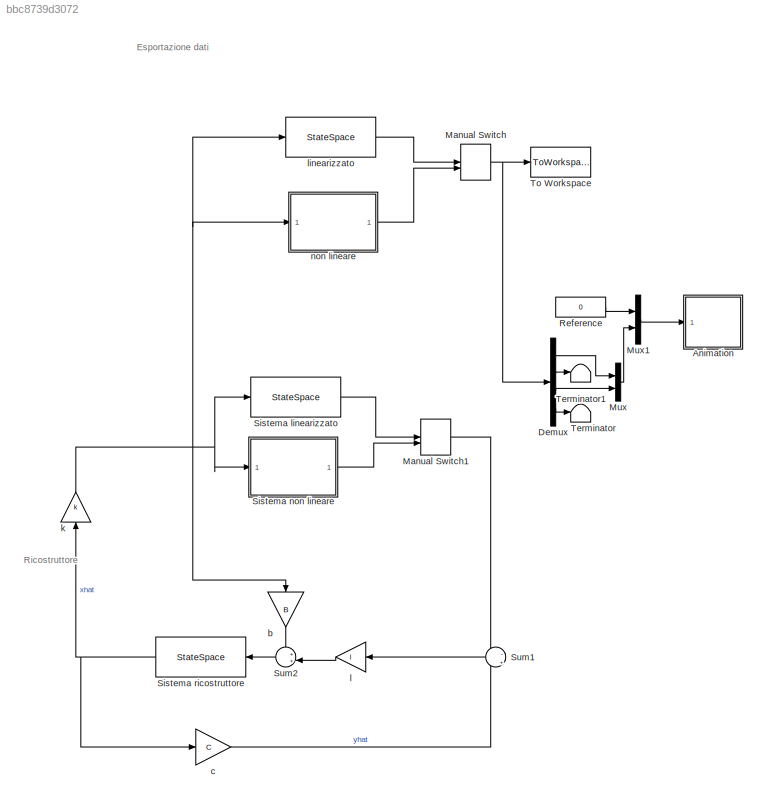
MODEL slx_bbc8739d3072
KIND model
CONFIG AbsTol = auto
CONFIG EnableMultiTasking = off
CONFIG FixedStep = auto
CONFIG MaxStep = auto
CONFIG MinStep = auto
CONFIG RelTol = 1e-7
CONFIG SampleTimeConstraint = Unconstrained
CONFIG Solver = VariableStepAuto
CONFIG SolverName = VariableStepAuto
CONFIG StartTime = 0.0
CONFIG StopTime = 25
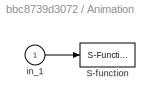
BLOCK [SubSystem] Animation
  Ports = [1]
  RequestExecContextInheritance = off
BLOCK [S-Function] Animation/S-function
  DeleteFcn = pendan([],[],[],'DeleteBlock');
  EnableBusSupport = off
  FunctionName = pendan
  Parameters = RefBlock
  Ports = [1]
  SFcnIsStateOwnerBlock = off
  SFunctionDeploymentMode = off
BLOCK [Inport] Animation/in_1
  IconDisplay = Port number
BLOCK [Demux] Demux
  DisplayOption = bar
  Ports = [1, 4]
BLOCK [ManualSwitch] Manual Switch
BLOCK [ManualSwitch] Manual Switch1
BLOCK [Mux] Mux
  DisplayOption = bar
  Inputs = 2
  Ports = [2, 1]
BLOCK [Mux] Mux1
  DisplayOption = bar
  Inputs = 2
  Ports = [2, 1]
BLOCK [Constant] Reference
  Value = 0
BLOCK [StateSpace] Sistema linearizzato
  A = A
  B = B
  C = C
  D = D
  InitialCondition = x0
  Ports = [1, 1]
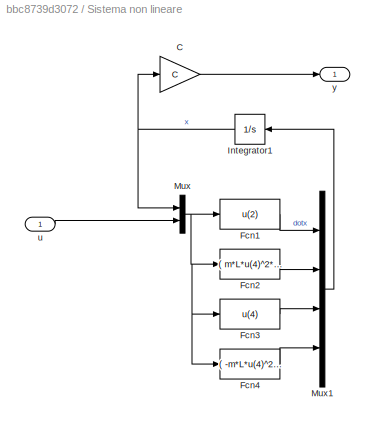
BLOCK [SubSystem] Sistema non lineare
  Ports = [1, 1]
  RequestExecContextInheritance = off
BLOCK [Gain] Sistema non lineare/C
  Gain = C
  Multiplication = Matrix(K*u)
  OutDataTypeStr = Inherit: Inherit via internal rule
  ParamDataTypeStr = Inherit: Inherit via internal rule
  SaturateOnIntegerOverflow = off
BLOCK [Fcn] Sistema non lineare/Fcn1
  Expr = u(2)
BLOCK [Fcn] Sistema non lineare/Fcn2
  Expr = ( m*L*u(4)^2*sin(u(3)) - m*g*sin(u(3))*cos(u(3)) + u(5) ) / ( M + m*(sin(u(3)))^2 )
BLOCK [Fcn] Sistema non lineare/Fcn3
  Expr = u(4)
BLOCK [Fcn] Sistema non lineare/Fcn4
  Expr = ( -m*L*u(4)^2*sin(u(3))*cos(u(3)) + (M+m)*g*sin(u(3)) - u(5)*cos(u(3))  ) / ( ( M + m*(sin(u(3)))^2 )*L )
BLOCK [Integrator] Sistema non lineare/Integrator1
  InitialCondition = x0
  Ports = [1, 1]
BLOCK [Mux] Sistema non lineare/Mux
  DisplayOption = bar
  Inputs = 2
  Ports = [2, 1]
BLOCK [Mux] Sistema non lineare/Mux1
  DisplayOption = bar
  Ports = [4, 1]
BLOCK [Inport] Sistema non lineare/u
  IconDisplay = Port number
BLOCK [Outport] Sistema non lineare/y
  IconDisplay = Port number
BLOCK [StateSpace] Sistema ricostruttore
  A = A
  B = eye(4)
  C = eye(4)
  D = zeros(4)
  InitialCondition = xhat0
  Ports = [1, 1]
BLOCK [Sum] Sum1
  IconShape = round
  InputSameDT = off
  Inputs = -|+
  OutDataTypeStr = Inherit: Inherit via internal rule
  Ports = [2, 1]
  SaturateOnIntegerOverflow = off
BLOCK [Sum] Sum2
  IconShape = round
  InputSameDT = off
  Inputs = ++|
  OutDataTypeStr = Inherit: Inherit via internal rule
  Ports = [2, 1]
  SaturateOnIntegerOverflow = off
BLOCK [Terminator] Terminator
BLOCK [Terminator] Terminator1
BLOCK [ToWorkspace] To Workspace
  FixptAsFi = on
  MaxDataPoints = inf
  Ports = [1]
  SampleTime = 0.05
  Save2DSignal = 3-D array (concatenate along third dimension)
  SaveFormat = Timeseries
  VariableName = x
BLOCK [Gain] b
  Gain = B
  Multiplication = Matrix(K*u)
  OutDataTypeStr = Inherit: Inherit via internal rule
  ParamDataTypeStr = Inherit: Inherit via internal rule
  SaturateOnIntegerOverflow = off
BLOCK [Gain] c
  Gain = C
  Multiplication = Matrix(K*u)
  OutDataTypeStr = Inherit: Inherit via internal rule
  ParamDataTypeStr = Inherit: Inherit via internal rule
  SaturateOnIntegerOverflow = off
BLOCK [Gain] k
  Gain = k
  Multiplication = Matrix(K*u)
  OutDataTypeStr = Inherit: Inherit via internal rule
  ParamDataTypeStr = Inherit: Inherit via internal rule
  SaturateOnIntegerOverflow = off
BLOCK [Gain] l
  Gain = l
  Multiplication = Matrix(K*u)
  OutDataTypeStr = Inherit: Inherit via internal rule
  ParamDataTypeStr = Inherit: Inherit via internal rule
  SaturateOnIntegerOverflow = off
BLOCK [StateSpace] linearizzato
  A = A
  B = B
  C = eye(4)
  D = zeros(4,1)
  InitialCondition = x0
  Ports = [1, 1]
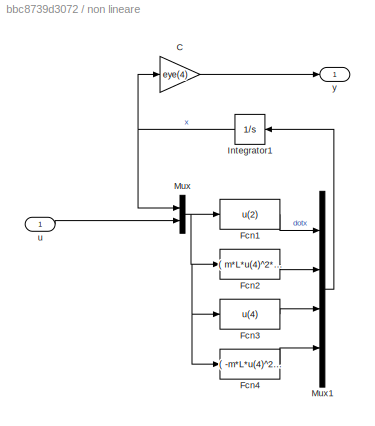
BLOCK [SubSystem] non lineare
  Ports = [1, 1]
  RequestExecContextInheritance = off
BLOCK [Gain] non lineare/C
  Gain = eye(4)
  Multiplication = Matrix(K*u)
  OutDataTypeStr = Inherit: Inherit via internal rule
  ParamDataTypeStr = Inherit: Inherit via internal rule
  SaturateOnIntegerOverflow = off
BLOCK [Fcn] non lineare/Fcn1
  Expr = u(2)
BLOCK [Fcn] non lineare/Fcn2
  Expr = ( m*L*u(4)^2*sin(u(3)) - m*g*sin(u(3))*cos(u(3)) + u(5) ) / ( M + m*(sin(u(3)))^2 )
BLOCK [Fcn] non lineare/Fcn3
  Expr = u(4)
BLOCK [Fcn] non lineare/Fcn4
  Expr = ( -m*L*u(4)^2*sin(u(3))*cos(u(3)) + (M+m)*g*sin(u(3)) - u(5)*cos(u(3))  ) / ( ( M + m*(sin(u(3)))^2 )*L )
BLOCK [Integrator] non lineare/Integrator1
  InitialCondition = x0
  Ports = [1, 1]
BLOCK [Mux] non lineare/Mux
  DisplayOption = bar
  Inputs = 2
  Ports = [2, 1]
BLOCK [Mux] non lineare/Mux1
  DisplayOption = bar
  Ports = [4, 1]
BLOCK [Inport] non lineare/u
  IconDisplay = Port number
BLOCK [Outport] non lineare/y
  IconDisplay = Port number
ANNOTATION (root): Esportazione dati
ANNOTATION (root): Ricostruttore
LINE Animation/in_1:1 -> Animation/S-function:1
LINE Demux:1 -> Mux:1
LINE Demux:2 -> Terminator1:1
LINE Demux:3 -> Mux:2
LINE Demux:4 -> Terminator:1
LINE Manual Switch1:1 -> Sum1:1
NET Manual Switch:1 -> Demux:1, To Workspace:1
LINE Mux1:1 -> Animation:1
LINE Mux:1 -> Mux1:2
LINE Reference:1 -> Mux1:1
LINE Sistema linearizzato:1 -> Manual Switch1:1
LINE Sistema non lineare/C:1 -> Sistema non lineare/y:1
LINE Sistema non lineare/Fcn1:1 -> Sistema non lineare/Mux1:1
LINE Sistema non lineare/Fcn2:1 -> Sistema non lineare/Mux1:2
LINE Sistema non lineare/Fcn3:1 -> Sistema non lineare/Mux1:3
LINE Sistema non lineare/Fcn4:1 -> Sistema non lineare/Mux1:4
NET Sistema non lineare/Integrator1:1 -> Sistema non lineare/C:1, Sistema non lineare/Mux:1
LINE Sistema non lineare/Mux1:1 -> Sistema non lineare/Integrator1:1
NET Sistema non lineare/Mux:1 -> Sistema non lineare/Fcn1:1, Sistema non lineare/Fcn2:1, Sistema non lineare/Fcn3:1, Sistema non lineare/Fcn4:1
LINE Sistema non lineare/u:1 -> Sistema non lineare/Mux:2
LINE Sistema non lineare:1 -> Manual Switch1:2
NET Sistema ricostruttore:1 -> c:1, k:1
LINE Sum1:1 -> l:1
LINE Sum2:1 -> Sistema ricostruttore:1
LINE b:1 -> Sum2:1
LINE c:1 -> Sum1:2
NET k:1 -> Sistema linearizzato:1, Sistema non lineare:1, b:1, linearizzato:1, non lineare:1
LINE l:1 -> Sum2:2
LINE linearizzato:1 -> Manual Switch:1
LINE non lineare/C:1 -> non lineare/y:1
LINE non lineare/Fcn1:1 -> non lineare/Mux1:1
LINE non lineare/Fcn2:1 -> non lineare/Mux1:2
LINE non lineare/Fcn3:1 -> non lineare/Mux1:3
LINE non lineare/Fcn4:1 -> non lineare/Mux1:4
NET non lineare/Integrator1:1 -> non lineare/C:1, non lineare/Mux:1
LINE non lineare/Mux1:1 -> non lineare/Integrator1:1
NET non lineare/Mux:1 -> non lineare/Fcn1:1, non lineare/Fcn2:1, non lineare/Fcn3:1, non lineare/Fcn4:1
LINE non lineare/u:1 -> non lineare/Mux:2
LINE non lineare:1 -> Manual Switch:2
note: NET lines group one-source signal fan-out (src -> all destinations, sorted); 1:1 wires keep LINE
